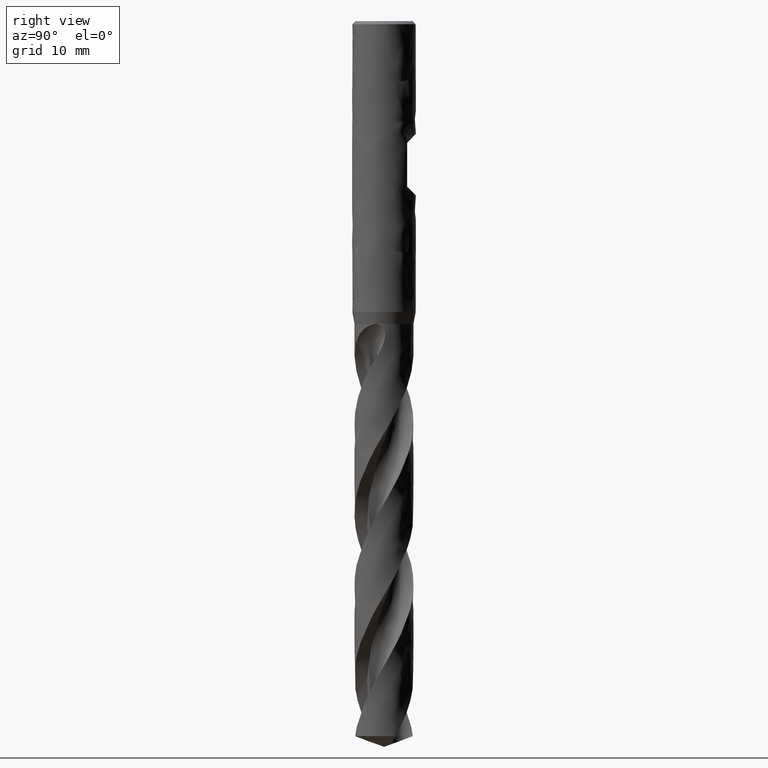
[diagram: clean part render]
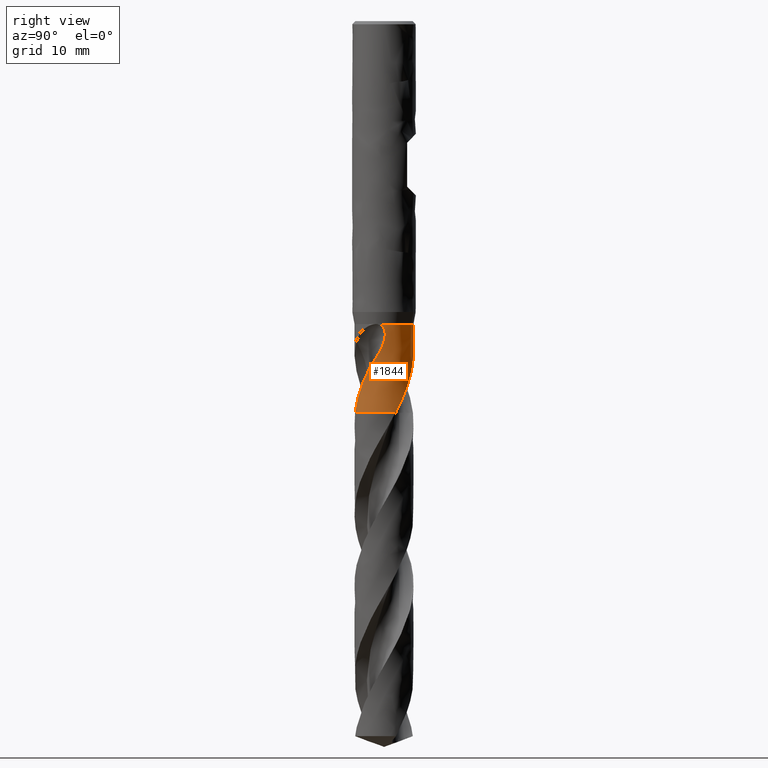
[diagram: same view with one face highlighted and labeled with its STEP entity id]
A machine part, right view. The second image highlights one B-rep face of the part: STEP entity #1844.
In plain terms, the highlighted face is a freeform B-spline surface patch.
Its self-contained STEP definition (entity closure, byte-faithful):
#75 = VERTEX_POINT('', #76);
#76 = CARTESIAN_POINT('', (3.61565032876505, -0.785539750809081, -38.));
#86 = EDGE_CURVE('', #87, #75, #89, .T.);
#87 = VERTEX_POINT('', #88);
#88 = CARTESIAN_POINT('', (-3.49489260508596, 1.21479450069363, -38.));
#89 = CIRCLE('', #90, 3.7);
#90 = AXIS2_PLACEMENT_3D('', #91, #92, #93);
#91 = CARTESIAN_POINT('', (1.42477179352876E-31, 2.32682891837997E-15, -38.));
#92 = DIRECTION('', (3.74939945665464E-33, 6.12323399573677E-17, -1.));
#93 = DIRECTION('', (-1., 6.12323399573677E-17, 0.));
#567 = VERTEX_POINT('', #568);
#568 = CARTESIAN_POINT('', (3.41056704865029, 1.43458440206941, -49.1));
#577 = VERTEX_POINT('', #578);
#578 = CARTESIAN_POINT('', (-1.24992992825555, 3.48248118077487, -40.1837766719755));
#598 = EDGE_CURVE('', #577, #567, #599, .T.);
#599 = B_SPLINE_CURVE_WITH_KNOTS('', 3, (#600, #601, #602, #603, #604, #605, #606, #607, #608, #609, #610, #611, #612, #613, #614, #615, #616, #617, #618, #619, #620, #621, #622, #623, #624, #625, #626, #627, #628, #629, #630, #631, #632, #633, #634, #635, #636, #637, #638, #639, #640, #641, #642, #643, #644, #645, #646, #647, #648, #649, #650, #651, #652, #653, #654, #655, #656, #657, #658, #659, #660, #661, #662, #663, #664, #665, #666, #667, #668, #669, #670, #671, #672, #673, #674, #675, #676, #677, #678, #679, #680, #681, #682, #683, #684, #685, #686, #687, #688, #689, #690, #691, #692, #693, #694, #695, #696, #697, #698, #699, #700, #701, #702, #703, #704, #705, #706, #707, #708, #709, #710, #711), .UNSPECIFIED., .F., .U., (4, 3, 3, 3, 3, 3, 3, 3, 3, 3, 3, 3, 3, 3, 3, 3, 3, 3, 3, 3, 3, 3, 3, 3, 3, 3, 3, 3, 3, 3, 3, 3, 3, 3, 3, 3, 3, 4), (0., 0.29427714454327, 0.588592112093783, 0.882947436501731, 1.17735605179881, 1.47182101824767, 1.7663437399214, 2.06093205689115, 2.14851104465765, 2.44417440284584, 2.7398686068457, 3.03560211182068, 3.2327288939606, 3.67662153809367, 3.97240634839001, 4.26821356890941, 4.56409605924149, 4.76127917067626, 4.84887873226689, 5.046016310154, 5.24310145588374, 5.44017411937876, 5.57156112206824, 5.70296025341936, 5.99864274804459, 6.29426701755207, 6.49133080325853, 6.93471127537161, 7.23030054133027, 7.67362812909391, 7.96917282006782, 8.26471765246939, 8.56026674186628, 8.75729750790199, 9.20050050843911, 9.49599203726311, 10.1604980002279, 10.555448820021), .UNSPECIFIED.);
#600 = CARTESIAN_POINT('', (-1.24992992825555, 3.48248118077487, -40.1837766719755));
#601 = CARTESIAN_POINT('', (-1.19038797063701, 3.50385194229547, -40.2587444060092));
#602 = CARTESIAN_POINT('', (-1.13063316269059, 3.52357466607147, -40.3340311483361));
#603 = CARTESIAN_POINT('', (-1.07078065570963, 3.54167033860551, -40.4096111678837));
#604 = CARTESIAN_POINT('', (-1.01092045597425, 3.55976833694965, -40.4852009016196));
#605 = CARTESIAN_POINT('', (-0.950945331803026, 3.57624400774011, -40.5611054420589));
#606 = CARTESIAN_POINT('', (-0.89097181609877, 3.59112367134824, -40.6373049297716));
#607 = CARTESIAN_POINT('', (-0.830990076746756, 3.60600537527551, -40.7135148660588));
#608 = CARTESIAN_POINT('', (-0.770996188597096, 3.61929421203705, -40.7900428013485));
#609 = CARTESIAN_POINT('', (-0.711095418243491, 3.63102510403786, -40.866864103344));
#610 = CARTESIAN_POINT('', (-0.651183803291378, 3.64275811983129, -40.9436993132771));
#611 = CARTESIAN_POINT('', (-0.591348623737727, 3.65293592424542, -41.0208472736099));
#612 = CARTESIAN_POINT('', (-0.531691110517853, 3.66159863488563, -41.0982853347428));
#613 = CARTESIAN_POINT('', (-0.47202217857785, 3.67026300360817, -41.1757382178738));
#614 = CARTESIAN_POINT('', (-0.412515872017726, 3.67741382674891, -41.2535006025084));
#615 = CARTESIAN_POINT('', (-0.353274758725985, 3.6830961085542, -41.331555736862));
#616 = CARTESIAN_POINT('', (-0.29402202611035, 3.68877950486038, -41.4096261806492));
#617 = CARTESIAN_POINT('', (-0.235022853736817, 3.69299506630933, -41.4880100515751));
#618 = CARTESIAN_POINT('', (-0.176367363137274, 3.69579417084069, -41.56668584166));
#619 = CARTESIAN_POINT('', (-0.117698808947096, 3.69859389878096, -41.6453791542018));
#620 = CARTESIAN_POINT('', (-0.0593599264275786, 3.69997721050514, -41.7243820257142));
#621 = CARTESIAN_POINT('', (-0.00143792183375827, 3.69999972059199, -41.8036758845133));
#622 = CARTESIAN_POINT('', (0.0157818735196821, 3.70000641267891, -41.8272493784018));
#623 = CARTESIAN_POINT('', (0.0329655604907672, 3.69989287495639, -41.8508496273884));
#624 = CARTESIAN_POINT('', (0.0501108339437064, 3.69966064718394, -41.8744762369504));
#625 = CARTESIAN_POINT('', (0.107992630199059, 3.69887665498651, -41.9542387793577));
#626 = CARTESIAN_POINT('', (0.165444101978918, 3.69673929272208, -42.0343129562418));
#627 = CARTESIAN_POINT('', (0.22237737912706, 3.69331129222183, -42.1146860295844));
#628 = CARTESIAN_POINT('', (0.279316595980264, 3.68988293408694, -42.1950674880468));
#629 = CARTESIAN_POINT('', (0.33575194307453, 3.685163040805, -42.2757626868627));
#630 = CARTESIAN_POINT('', (0.391614716754155, 3.6792170245342, -42.3567503546105));
#631 = CARTESIAN_POINT('', (0.447484915203857, 3.67327021797319, -42.4377487865));
#632 = CARTESIAN_POINT('', (0.502793651737888, 3.66609569116279, -42.5190556169342));
#633 = CARTESIAN_POINT('', (0.557471156749236, 3.657762418391, -42.6006553507713));
#634 = CARTESIAN_POINT('', (0.59391748574817, 3.65220771722065, -42.6550472025033));
#635 = CARTESIAN_POINT('', (0.630087132330359, 3.6461376877616, -42.7095750414887));
#636 = CARTESIAN_POINT('', (0.665958447456405, 3.63957406110406, -42.7642360942928));
#637 = CARTESIAN_POINT('', (0.746733939994651, 3.62479400148715, -42.887322561778));
#638 = CARTESIAN_POINT('', (0.826017335544187, 3.60750559415785, -43.0111209823936));
#639 = CARTESIAN_POINT('', (0.90360256458355, 3.58796633279607, -43.1355884815064));
#640 = CARTESIAN_POINT('', (0.955300948317809, 3.57494648037992, -43.2185265434449));
#641 = CARTESIAN_POINT('', (1.00625738256647, 3.56092484722939, -43.3017792863761));
#642 = CARTESIAN_POINT('', (1.0564205675421, 3.54598020080138, -43.3853333046638));
#643 = CARTESIAN_POINT('', (1.10658755314619, 3.53103442208785, -43.4688936534463));
#644 = CARTESIAN_POINT('', (1.15596813624443, 3.51516376440346, -43.5527694792319));
#645 = CARTESIAN_POINT('', (1.20453739460489, 3.49844103351764, -43.6369348643295));
#646 = CARTESIAN_POINT('', (1.25311901168658, 3.4817140474388, -43.7211216657833));
#647 = CARTESIAN_POINT('', (1.30089764401582, 3.46413101133533, -43.8056101657545));
#648 = CARTESIAN_POINT('', (1.34781794765524, 3.44577810951031, -43.8903983678911));
#649 = CARTESIAN_POINT('', (1.37908675119513, 3.43354730030747, -43.9469032374137));
#650 = CARTESIAN_POINT('', (1.40997621643015, 3.42097388481702, -44.003546359704));
#651 = CARTESIAN_POINT('', (1.44045981423431, 3.4080897176536, -44.0603343826469));
#652 = CARTESIAN_POINT('', (1.45400230164065, 3.40236586338047, -44.0855627395645));
#653 = CARTESIAN_POINT('', (1.46746460453288, 3.39658075274915, -44.1108204601629));
#654 = CARTESIAN_POINT('', (1.48084475680079, 3.39073720689994, -44.1361079266799));
#655 = CARTESIAN_POINT('', (1.51095598980196, 3.37758665621148, -44.1930158587465));
#656 = CARTESIAN_POINT('', (1.54065109604857, 3.36414043583272, -44.2500779019095));
#657 = CARTESIAN_POINT('', (1.56994666106527, 3.35041303146494, -44.3072746177945));
#658 = CARTESIAN_POINT('', (1.59923443441845, 3.3366892781384, -44.3644561212211));
#659 = CARTESIAN_POINT('', (1.62812462269513, 3.322684089937, -44.421775544043));
#660 = CARTESIAN_POINT('', (1.65667265354085, 3.30838868922773, -44.4791906192486));
#661 = CARTESIAN_POINT('', (1.68521887631919, 3.29409419390656, -44.5366020581151));
#662 = CARTESIAN_POINT('', (1.71342466777334, 3.27950909528612, -44.5941118542932));
#663 = CARTESIAN_POINT('', (1.74138190348607, 3.26459630983852, -44.6516557031879));
#664 = CARTESIAN_POINT('', (1.76002080214728, 3.2546540573365, -44.690019795373));
#665 = CARTESIAN_POINT('', (1.77855041859426, 3.24456532426572, -44.7283994393672));
#666 = CARTESIAN_POINT('', (1.79700560536632, 3.23431149617381, -44.7667703344306));
#667 = CARTESIAN_POINT('', (1.81546249578266, 3.22405672152547, -44.8051447716071));
#668 = CARTESIAN_POINT('', (1.83385045164655, 3.21363347539465, -44.8435077798287));
#669 = CARTESIAN_POINT('', (1.85216527615607, 3.20304289540458, -44.881859069953));
#670 = CARTESIAN_POINT('', (1.89337843292441, 3.17921131388045, -44.9681595273414));
#671 = CARTESIAN_POINT('', (1.93421771718887, 3.1545340237699, -45.0544099950029));
#672 = CARTESIAN_POINT('', (1.97462591975115, 3.1290337928899, -45.1406141300833));
#673 = CARTESIAN_POINT('', (2.01502616522299, 3.10353858345679, -45.2268012900434));
#674 = CARTESIAN_POINT('', (2.05499935617434, 3.07721878344834, -45.3129497971741));
#675 = CARTESIAN_POINT('', (2.09451468737629, 3.05008331433176, -45.399046353412));
#676 = CARTESIAN_POINT('', (2.12085569372559, 3.03199475117035, -45.4564385064202));
#677 = CARTESIAN_POINT('', (2.14699626456914, 3.01354168702692, -45.5138093014936));
#678 = CARTESIAN_POINT('', (2.1729276857116, 2.99472624335982, -45.5711542614884));
#679 = CARTESIAN_POINT('', (2.23127166660841, 2.95239274070114, -45.7001766252101));
#680 = CARTESIAN_POINT('', (2.28856429776366, 2.90821823402359, -45.8290882102714));
#681 = CARTESIAN_POINT('', (2.34466827520747, 2.86225971554569, -45.9578634959006));
#682 = CARTESIAN_POINT('', (2.38207121591647, 2.8316204664225, -46.043714349844));
#683 = CARTESIAN_POINT('', (2.41894971779827, 2.8001853486307, -46.1295150224384));
#684 = CARTESIAN_POINT('', (2.45525945222342, 2.76797778572509, -46.215261093841));
#685 = CARTESIAN_POINT('', (2.50971713668241, 2.71967257706204, -46.3438638659067));
#686 = CARTESIAN_POINT('', (2.56290413755564, 2.66962101631373, -46.47236722441));
#687 = CARTESIAN_POINT('', (2.61467582066246, 2.617913358544, -46.6007561511905));
#688 = CARTESIAN_POINT('', (2.64918945461471, 2.58344240713393, -46.6863467319193));
#689 = CARTESIAN_POINT('', (2.68307842869501, 2.5482316256146, -46.7718967842485));
#690 = CARTESIAN_POINT('', (2.71630290702298, 2.51230939919799, -46.8574006591216));
#691 = CARTESIAN_POINT('', (2.74952740124993, 2.47638715559143, -46.942904574911));
#692 = CARTESIAN_POINT('', (2.78209252390733, 2.43974767789853, -47.0283689727549));
#693 = CARTESIAN_POINT('', (2.81395182732378, 2.40243108402742, -47.1137952615972));
#694 = CARTESIAN_POINT('', (2.84581158963815, 2.36511395265218, -47.1992227809104));
#695 = CARTESIAN_POINT('', (2.87696828708401, 2.32711583959978, -47.2846206357418));
#696 = CARTESIAN_POINT('', (2.90736156164572, 2.28850360494909, -47.3700069227059));
#697 = CARTESIAN_POINT('', (2.92762354310351, 2.26276237127755, -47.4269305476909));
#698 = CARTESIAN_POINT('', (2.94754658387535, 2.23674801357468, -47.4838529716583));
#699 = CARTESIAN_POINT('', (2.96711216413728, 2.21048533255225, -47.5407820304902));
#700 = CARTESIAN_POINT('', (3.01112317852762, 2.15140979188679, -47.668838831972));
#701 = CARTESIAN_POINT('', (3.05333989132625, 2.09105960469823, -47.7969430863177));
#702 = CARTESIAN_POINT('', (3.09370294206055, 2.02953248465895, -47.9250472272869));
#703 = CARTESIAN_POINT('', (3.12061372460269, 1.98851123087115, -48.0104565959459));
#704 = CARTESIAN_POINT('', (3.14670431666709, 1.94696135384495, -48.0958760682868));
#705 = CARTESIAN_POINT('', (3.17196068932058, 1.90490561062876, -48.1812875653876));
#706 = CARTESIAN_POINT('', (3.22875761442329, 1.81032999874812, -48.3733622734347));
#707 = CARTESIAN_POINT('', (3.28135427559537, 1.71315275517452, -48.5654613551739));
#708 = CARTESIAN_POINT('', (3.32948843225468, 1.61384843758089, -48.7575157381102));
#709 = CARTESIAN_POINT('', (3.35809709145742, 1.55482666226436, -48.8716637521433));
#710 = CARTESIAN_POINT('', (3.38514076358881, 1.49503260565728, -48.9858452227826));
#711 = CARTESIAN_POINT('', (3.41056704865029, 1.43458440206941, -49.1));
#974 = EDGE_CURVE('', #577, #87, #975, .T.);
#975 = B_SPLINE_CURVE_WITH_KNOTS('', 3, (#976, #977, #978, #979, #980, #981, #982, #983, #984, #985, #986, #987, #988, #989, #990, #991, #992, #993, #994, #995, #996, #997, #998, #999, #1000, #1001, #1002, #1003, #1004, #1005, #1006, #1007, #1008, #1009, #1010, #1011, #1012, #1013, #1014, #1015, #1016, #1017, #1018, #1019, #1020, #1021, #1022, #1023, #1024), .UNSPECIFIED., .F., .U., (4, 3, 3, 3, 3, 3, 3, 3, 3, 3, 3, 3, 3, 3, 3, 3, 4), (0., 0.298448926463184, 0.597056203879035, 0.895795417480713, 1.19464400283679, 1.49357151838296, 1.79254436967524, 2.09153530566243, 2.39051032726756, 2.68942480457233, 2.88787901920324, 3.0862717705071, 3.28457882336695, 3.48276793221613, 3.68079575171105, 3.87860381193015, 4.03412538615486), .UNSPECIFIED.);
#976 = CARTESIAN_POINT('', (-1.24992992825555, 3.48248118077487, -40.1837766719755));
#977 = CARTESIAN_POINT('', (-1.31031597474362, 3.4608074594146, -40.1077461675458));
#978 = CARTESIAN_POINT('', (-1.37140893899496, 3.43710595202568, -40.0328136939244));
#979 = CARTESIAN_POINT('', (-1.43297886838977, 3.41124193846625, -39.9590772781666));
#980 = CARTESIAN_POINT('', (-1.49458146554148, 3.38536420198532, -39.8853017393608));
#981 = CARTESIAN_POINT('', (-1.55669874993096, 3.35730568698522, -39.8126742855172));
#982 = CARTESIAN_POINT('', (-1.61907634901225, 3.3269493197326, -39.7412957632056));
#983 = CARTESIAN_POINT('', (-1.68148150891716, 3.29657953986878, -39.6698857031163));
#984 = CARTESIAN_POINT('', (-1.74419082206987, 3.26388854236522, -39.5996755438313));
#985 = CARTESIAN_POINT('', (-1.80693636700868, 3.22877391057062, -39.5307837198029));
#986 = CARTESIAN_POINT('', (-1.86970488379055, 3.1936464229181, -39.4618666737101));
#987 = CARTESIAN_POINT('', (-1.93255804165733, 3.15606631461197, -39.394215663681));
#988 = CARTESIAN_POINT('', (-1.99521274747664, 3.11594706185884, -39.3279720245361));
#989 = CARTESIAN_POINT('', (-2.05788400130079, 3.07581721303667, -39.2617108894977));
#990 = CARTESIAN_POINT('', (-2.12040913396078, 3.03311288613272, -39.1967998635247));
#991 = CARTESIAN_POINT('', (-2.18248041938375, 2.98777161426481, -39.133396760838));
#992 = CARTESIAN_POINT('', (-2.24456111862073, 2.94242346587908, -39.0699840423522));
#993 = CARTESIAN_POINT('', (-2.30624715631205, 2.89439411719504, -39.0080187602022));
#994 = CARTESIAN_POINT('', (-2.36721634208153, 2.84363970815259, -38.9476997002386));
#995 = CARTESIAN_POINT('', (-2.42818921584181, 2.79288222900528, -38.8873769916099));
#996 = CARTESIAN_POINT('', (-2.48851093492487, 2.73934435636954, -38.8286350204555));
#997 = CARTESIAN_POINT('', (-2.54784009116676, 2.68300407562929, -38.7717257401401));
#998 = CARTESIAN_POINT('', (-2.60716608949734, 2.62666679371156, -38.7148194889334));
#999 = CARTESIAN_POINT('', (-2.66557299097689, 2.56745729252837, -38.6596743730076));
#1000 = CARTESIAN_POINT('', (-2.72269451505491, 2.50538112423837, -38.606613411316));
#1001 = CARTESIAN_POINT('', (-2.77980447166922, 2.44331752675834, -38.553563194799));
#1002 = CARTESIAN_POINT('', (-2.83571198459132, 2.37829802815393, -38.5025181181393));
#1003 = CARTESIAN_POINT('', (-2.89001875659672, 2.31036611525515, -38.4538992691873));
#1004 = CARTESIAN_POINT('', (-2.92607391151811, 2.2652650062548, -38.4216204194908));
#1005 = CARTESIAN_POINT('', (-2.96145646996524, 2.21883959390556, -38.3903826645913));
#1006 = CARTESIAN_POINT('', (-2.99603998481029, 2.17111593642946, -38.3603420023938));
#1007 = CARTESIAN_POINT('', (-3.03061278878237, 2.1234070594647, -38.3303106441007));
#1008 = CARTESIAN_POINT('', (-3.06441687646265, 2.07435923117886, -38.3014492562182));
#1009 = CARTESIAN_POINT('', (-3.09731618680947, 2.02401394237492, -38.2739486113056));
#1010 = CARTESIAN_POINT('', (-3.13020128585226, 1.9736904009024, -38.2464598456702));
#1011 = CARTESIAN_POINT('', (-3.16221531238784, 1.92201955631254, -38.2203024839329));
#1012 = CARTESIAN_POINT('', (-3.19321069495888, 1.86906539682277, -38.1957125662112));
#1013 = CARTESIAN_POINT('', (-3.22418764288687, 1.81614273205727, -38.1711372734536));
#1014 = CARTESIAN_POINT('', (-3.25418382686119, 1.76187460924203, -38.1480976023825));
#1015 = CARTESIAN_POINT('', (-3.28303794943366, 1.70635923022628, -38.1268889469266));
#1016 = CARTESIAN_POINT('', (-3.31186859007605, 1.65088903048241, -38.1056975514017));
#1017 = CARTESIAN_POINT('', (-3.33960029550135, 1.59409233930853, -38.0863027510183));
#1018 = CARTESIAN_POINT('', (-3.36605571409175, 1.53612139156717, -38.069077647566));
#1019 = CARTESIAN_POINT('', (-3.39248177406151, 1.47821477647123, -38.0518716594898));
#1020 = CARTESIAN_POINT('', (-3.4176813170726, 1.41903014411121, -38.0367987820141));
#1021 = CARTESIAN_POINT('', (-3.44145923897237, 1.35880767825755, -38.0243318746307));
#1022 = CARTESIAN_POINT('', (-3.46015402745344, 1.31145929072026, -38.014530084654));
#1023 = CARTESIAN_POINT('', (-3.4779993440003, 1.26339542308042, -38.0063251939517));
#1024 = CARTESIAN_POINT('', (-3.49489260508597, 1.21479450069363, -38.));
#1174 = EDGE_CURVE('', #1175, #1177, #1179, .T.);
#1175 = VERTEX_POINT('', #1176);
#1176 = CARTESIAN_POINT('', (3.22279870937257, -1.81757213855915, -43.5197669627323));
#1177 = VERTEX_POINT('', #1178);
#1178 = CARTESIAN_POINT('', (2.63015329540276, -2.60236308817234, -45.2458569978374));
#1179 = B_SPLINE_CURVE_WITH_KNOTS('', 3, (#1180, #1181, #1182, #1183, #1184, #1185, #1186, #1187, #1188, #1189, #1190, #1191, #1192, #1193, #1194, #1195, #1196, #1197, #1198, #1199, #1200, #1201, #1202, #1203, #1204, #1205, #1206, #1207), .UNSPECIFIED., .F., .U., (4, 3, 3, 3, 3, 3, 3, 3, 3, 4), (0., 0.295750939950184, 0.591578091872068, 0.679171715455199, 0.87629684888586, 1.07335978973788, 1.27039931977393, 1.46745721586414, 1.76309246680476, 1.98882235642753), .UNSPECIFIED.);
#1180 = CARTESIAN_POINT('', (3.22279870937257, -1.81757213855915, -43.5197669627323));
#1181 = CARTESIAN_POINT('', (3.19626796998906, -1.86461469100038, -43.6022403130608));
#1182 = CARTESIAN_POINT('', (3.16910186541744, -1.91037439369307, -43.6852549955602));
#1183 = CARTESIAN_POINT('', (3.14146218242953, -1.95479291904924, -43.7688120294731));
#1184 = CARTESIAN_POINT('', (3.11381537697994, -1.999222890602, -43.8523905951733));
#1185 = CARTESIAN_POINT('', (3.08568681225226, -2.04232241891967, -43.9365316459488));
#1186 = CARTESIAN_POINT('', (3.05727811094474, -2.08399869297899, -44.0212652209873));
#1187 = CARTESIAN_POINT('', (3.04886637093829, -2.09633892557287, -44.0463546045295));
#1188 = CARTESIAN_POINT('', (3.04043001035971, -2.10855470886784, -44.0714973343541));
#1189 = CARTESIAN_POINT('', (3.03197520852461, -2.12064290602923, -44.0966947090637));
#1190 = CARTESIAN_POINT('', (3.01294809363091, -2.14784679805813, -44.1534001591699));
#1191 = CARTESIAN_POINT('', (2.99383113884918, -2.17440057766066, -44.2103909841058));
#1192 = CARTESIAN_POINT('', (2.97462745511065, -2.20036167556661, -44.2676171218476));
#1193 = CARTESIAN_POINT('', (2.95542983009528, -2.22631458279897, -44.3248252048593));
#1194 = CARTESIAN_POINT('', (2.93614411318043, -2.2516778114088, -44.3822737120716));
#1195 = CARTESIAN_POINT('', (2.91673372084798, -2.2765465955408, -44.4398900917497));
#1196 = CARTESIAN_POINT('', (2.8973256344444, -2.30141242529422, -44.4974996266783));
#1197 = CARTESIAN_POINT('', (2.87779179262632, -2.32578601526607, -44.5552807354023));
#1198 = CARTESIAN_POINT('', (2.85805121299634, -2.34979643030841, -44.6131396267436));
#1199 = CARTESIAN_POINT('', (2.83830879334698, -2.37380908336148, -44.6710039111119));
#1200 = CARTESIAN_POINT('', (2.81835851790078, -2.39746038109705, -44.7289484255521));
#1201 = CARTESIAN_POINT('', (2.79807511762884, -2.42090388824223, -44.7868589746072));
#1202 = CARTESIAN_POINT('', (2.76764503465171, -2.456074907802, -44.873739023779));
#1203 = CARTESIAN_POINT('', (2.73646270551418, -2.49077480024029, -44.9605509603328));
#1204 = CARTESIAN_POINT('', (2.70454721975329, -2.52496026426649, -45.0472913161595));
#1205 = CARTESIAN_POINT('', (2.68017841036693, -2.55106229708154, -45.1135212088542));
#1206 = CARTESIAN_POINT('', (2.65538046316783, -2.57686652363354, -45.179712694397));
#1207 = CARTESIAN_POINT('', (2.63015329540276, -2.60236308817234, -45.2458569978374));
#1237 = VERTEX_POINT('', #1238);
#1238 = CARTESIAN_POINT('', (0.727143582491771, -3.62784539505765, -49.1));
#1314 = EDGE_CURVE('', #1177, #1237, #1315, .T.);
#1315 = B_SPLINE_CURVE_WITH_KNOTS('', 3, (#1316, #1317, #1318, #1319, #1320, #1321, #1322, #1323, #1324, #1325, #1326, #1327, #1328, #1329, #1330, #1331, #1332, #1333, #1334, #1335, #1336, #1337, #1338, #1339, #1340, #1341, #1342, #1343, #1344, #1345, #1346, #1347, #1348, #1349, #1350, #1351, #1352, #1353, #1354, #1355), .UNSPECIFIED., .F., .U., (4, 3, 3, 3, 3, 3, 3, 3, 3, 3, 3, 3, 3, 4), (0., 0.295560042018923, 0.738819006292096, 1.03434807998932, 1.47753799284324, 1.77301750903576, 2.06848564616201, 2.36396350563424, 2.56096532839385, 2.75795680938547, 3.20097984470927, 3.49639353476291, 4.16048844135131, 4.43471449933253), .UNSPECIFIED.);
#1316 = CARTESIAN_POINT('', (2.63015329540277, -2.60236308817233, -45.2458569978374));
#1317 = CARTESIAN_POINT('', (2.59712203500068, -2.63574708396934, -45.332463220597));
#1318 = CARTESIAN_POINT('', (2.56332988578325, -2.6686291139198, -45.4189778126348));
#1319 = CARTESIAN_POINT('', (2.52876896547978, -2.70098639745305, -45.5053765519192));
#1320 = CARTESIAN_POINT('', (2.47693706819962, -2.74951344423404, -45.6349509538854));
#1321 = CARTESIAN_POINT('', (2.42337331099367, -2.79685939092431, -45.7642925394977));
#1322 = CARTESIAN_POINT('', (2.36817789169331, -2.84283898124657, -45.8934060107232));
#1323 = CARTESIAN_POINT('', (2.33137806934811, -2.87349443738426, -45.9794883861032));
#1324 = CARTESIAN_POINT('', (2.29384914970067, -2.90354632156435, -46.065479355284));
#1325 = CARTESIAN_POINT('', (2.25562581766955, -2.93294257882125, -46.1513804391796));
#1326 = CARTESIAN_POINT('', (2.19830423174255, -2.97702664990411, -46.2802019233383));
#1327 = CARTESIAN_POINT('', (2.13941121461517, -3.01964277342053, -46.4088450424025));
#1328 = CARTESIAN_POINT('', (2.07906064827211, -3.06063830283947, -46.5373025062846));
#1329 = CARTESIAN_POINT('', (2.03882427188403, -3.08797046642768, -46.6229464890972));
#1330 = CARTESIAN_POINT('', (1.99793522395257, -3.11458609072129, -46.7085181288292));
#1331 = CARTESIAN_POINT('', (1.9564263808907, -3.14044516209963, -46.7940121597225));
#1332 = CARTESIAN_POINT('', (1.91491913635547, -3.16630323763199, -46.8795028981972));
#1333 = CARTESIAN_POINT('', (1.87278411679125, -3.19140939041612, -46.9649219472094));
#1334 = CARTESIAN_POINT('', (1.83008035141639, -3.21571234835451, -47.050279503655));
#1335 = CARTESIAN_POINT('', (1.78737518087891, -3.24001610597901, -47.1356398687813));
#1336 = CARTESIAN_POINT('', (1.74409699491558, -3.26351856373036, -47.220947376712));
#1337 = CARTESIAN_POINT('', (1.70033585872314, -3.28616158573194, -47.3062295710646));
#1338 = CARTESIAN_POINT('', (1.67115931192081, -3.30125820452789, -47.3630891535944));
#1339 = CARTESIAN_POINT('', (1.64176710584522, -3.3159735076751, -47.4199409988578));
#1340 = CARTESIAN_POINT('', (1.61219390275163, -3.33028990028353, -47.4767974626004));
#1341 = CARTESIAN_POINT('', (1.58262225212694, -3.34460554134149, -47.5336509416175));
#1342 = CARTESIAN_POINT('', (1.55287224159846, -3.35852130761173, -47.5905140172518));
#1343 = CARTESIAN_POINT('', (1.52295556687703, -3.37203296859895, -47.6473837435295));
#1344 = CARTESIAN_POINT('', (1.45567460642554, -3.40241995301417, -47.7752806384954));
#1345 = CARTESIAN_POINT('', (1.38753839577412, -3.43076897885617, -47.9032308095597));
#1346 = CARTESIAN_POINT('', (1.31863397039514, -3.45705141010658, -48.0311726954838));
#1347 = CARTESIAN_POINT('', (1.27268757722994, -3.47457688706873, -48.1164860575884));
#1348 = CARTESIAN_POINT('', (1.2263906206759, -3.49118681717829, -48.2018043334084));
#1349 = CARTESIAN_POINT('', (1.17977117923706, -3.50687039461706, -48.2871110519005));
#1350 = CARTESIAN_POINT('', (1.07496989666308, -3.54212733850573, -48.4788819790977));
#1351 = CARTESIAN_POINT('', (0.968515615092697, -3.57270341977046, -48.6706741539092));
#1352 = CARTESIAN_POINT('', (0.860952078002489, -3.59843876137724, -48.8624297982085));
#1353 = CARTESIAN_POINT('', (0.816535648263107, -3.6090657082332, -48.9416118456993));
#1354 = CARTESIAN_POINT('', (0.77191621648385, -3.6188714367068, -49.0208139709795));
#1355 = CARTESIAN_POINT('', (0.727143582491771, -3.62784539505765, -49.1));
#1358 = EDGE_CURVE('', #1175, #75, #1359, .T.);
#1359 = B_SPLINE_CURVE_WITH_KNOTS('', 3, (#1360, #1361, #1362, #1363, #1364, #1365, #1366, #1367, #1368, #1369, #1370, #1371, #1372, #1373, #1374, #1375, #1376, #1377, #1378, #1379, #1380, #1381, #1382, #1383, #1384, #1385, #1386, #1387, #1388, #1389, #1390, #1391, #1392, #1393, #1394, #1395, #1396, #1397, #1398, #1399, #1400, #1401, #1402, #1403, #1404, #1405, #1406, #1407, #1408, #1409, #1410, #1411, #1412, #1413, #1414, #1415, #1416, #1417, #1418, #1419, #1420, #1421, #1422, #1423, #1424, #1425, #1426, #1427, #1428, #1429, #1430, #1431, #1432, #1433, #1434, #1435, #1436, #1437, #1438, #1439, #1440, #1441, #1442, #1443, #1444, #1445, #1446, #1447, #1448, #1449, #1450, #1451, #1452, #1453, #1454, #1455, #1456, #1457, #1458, #1459, #1460, #1461, #1462, #1463, #1464, #1465, #1466, #1467, #1468), .UNSPECIFIED., .F., .U., (4, 3, 3, 3, 3, 3, 3, 3, 3, 3, 3, 3, 3, 3, 3, 3, 3, 3, 3, 3, 3, 3, 3, 3, 3, 3, 3, 3, 3, 3, 3, 3, 3, 3, 3, 3, 4), (0., 0.13133045936398, 0.426721623150737, 0.721959448666224, 1.01701635195514, 1.31188000124053, 1.60655670970567, 1.90105275446094, 2.19536432592904, 2.48950990678108, 2.78351498566091, 3.07740949592864, 3.37124822652874, 3.66509118925585, 3.79612683179342, 3.88356872351753, 4.17777693603379, 4.37431814964015, 4.57100770885269, 4.76792201776873, 4.96516243394355, 5.09677074379244, 5.13572499198515, 5.26761467444974, 5.39973894164116, 5.53212311433371, 5.62026745276122, 5.70850087896705, 5.79680949077456, 5.88517633835534, 5.97357711468378, 6.06198253552852, 6.15036229658073, 6.23868938532495, 6.37165443077655, 6.45977666943238, 6.53789027809907), .UNSPECIFIED.);
#1360 = CARTESIAN_POINT('', (3.22279870937257, -1.81757213855915, -43.5197669627323));
#1361 = CARTESIAN_POINT('', (3.23457988643693, -1.79668253454706, -43.483144042833));
#1362 = CARTESIAN_POINT('', (3.24621655590029, -1.77557422090455, -43.4465984223532));
#1363 = CARTESIAN_POINT('', (3.25769139588161, -1.75426530752878, -43.41012009716));
#1364 = CARTESIAN_POINT('', (3.28350084140371, -1.70633686235632, -43.328072299688));
#1365 = CARTESIAN_POINT('', (3.30849342013193, -1.65738439684978, -43.2463557461228));
#1366 = CARTESIAN_POINT('', (3.33249603267909, -1.60762874824325, -43.1648489707758));
#1367 = CARTESIAN_POINT('', (3.35648618541172, -1.55789892791487, -43.083384505794));
#1368 = CARTESIAN_POINT('', (3.37949118972458, -1.50735842102949, -43.0021152721948));
#1369 = CARTESIAN_POINT('', (3.40136997043561, -1.45625627010457, -42.9209060939067));
#1370 = CARTESIAN_POINT('', (3.42323534379372, -1.40518543466205, -42.8397466807369));
#1371 = CARTESIAN_POINT('', (3.44397940470698, -1.35354489320106, -42.7586340276039));
#1372 = CARTESIAN_POINT('', (3.46349619427969, -1.3016121204914, -42.6774228388772));
#1373 = CARTESIAN_POINT('', (3.48300020090212, -1.24971336229259, -42.5962648412034));
#1374 = CARTESIAN_POINT('', (3.50128062350183, -1.19751738390901, -42.5149924778318));
#1375 = CARTESIAN_POINT('', (3.51827427911201, -1.14531484620554, -42.4334656804604));
#1376 = CARTESIAN_POINT('', (3.53525716090207, -1.09314540442707, -42.3519905703227));
#1377 = CARTESIAN_POINT('', (3.55095826169154, -1.04095991653136, -42.2702469765639));
#1378 = CARTESIAN_POINT('', (3.56535864433992, -0.98904890537917, -42.1881120972369));
#1379 = CARTESIAN_POINT('', (3.57975019823978, -0.937169720413404, -42.1060275740853));
#1380 = CARTESIAN_POINT('', (3.59284627684618, -0.885551589614816, -42.0235376150279));
#1381 = CARTESIAN_POINT('', (3.60466508425083, -0.834499628749516, -41.9405288884943));
#1382 = CARTESIAN_POINT('', (3.6164764883158, -0.783479646999742, -41.857572158899));
#1383 = CARTESIAN_POINT('', (3.62701441873306, -0.733015814505482, -41.774076270649));
#1384 = CARTESIAN_POINT('', (3.63633410947883, -0.683428302194644, -41.6899419210876));
#1385 = CARTESIAN_POINT('', (3.64564854395418, -0.633868757053688, -41.605855022982));
#1386 = CARTESIAN_POINT('', (3.65374893706537, -0.585170138607316, -41.5211072442981));
#1387 = CARTESIAN_POINT('', (3.6607261531634, -0.537665352747824, -41.4356196579878));
#1388 = CARTESIAN_POINT('', (3.66770003651505, -0.490183258087985, -41.3501729057925));
#1389 = CARTESIAN_POINT('', (3.67355429415769, -0.4438768012339, -41.2639580903101));
#1390 = CARTESIAN_POINT('', (3.67841163516972, -0.399108810036123, -41.1769146240106));
#1391 = CARTESIAN_POINT('', (3.68326714944645, -0.354357655059925, -41.0899038927758));
#1392 = CARTESIAN_POINT('', (3.68712881696965, -0.311124107420765, -41.0020279937675));
#1393 = CARTESIAN_POINT('', (3.69015040241204, -0.269796233439673, -40.9132587080081));
#1394 = CARTESIAN_POINT('', (3.69317141437305, -0.228476203276666, -40.824506270203));
#1395 = CARTESIAN_POINT('', (3.69535457789735, -0.189036624502809, -40.7348126388656));
#1396 = CARTESIAN_POINT('', (3.69687999110956, -0.151915540132481, -40.644186126012));
#1397 = CARTESIAN_POINT('', (3.69840542629214, -0.114793921111244, -40.5535583078747));
#1398 = CARTESIAN_POINT('', (3.69927437195055, -0.0799654880723994, -40.4619311562664));
#1399 = CARTESIAN_POINT('', (3.6996893232972, -0.0479469611207538, -40.3693655864317));
#1400 = CARTESIAN_POINT('', (3.6998743657288, -0.033668694208126, -40.3280871130337));
#1401 = CARTESIAN_POINT('', (3.69996948098932, -0.0199459815620363, -40.2866111234687));
#1402 = CARTESIAN_POINT('', (3.69999369418016, -0.00683103411526467, -40.244948033329));
#1403 = CARTESIAN_POINT('', (3.7000098519764, 0.00192075121886126, -40.2171456785929));
#1404 = CARTESIAN_POINT('', (3.69999445266712, 0.0104028496350793, -40.1892568031674));
#1405 = CARTESIAN_POINT('', (3.69995325630272, 0.018598418613027, -40.1612854626835));
#1406 = CARTESIAN_POINT('', (3.69981464643856, 0.0461733446812253, -40.0671726990735));
#1407 = CARTESIAN_POINT('', (3.69938380313512, 0.0705404710696561, -39.9720348512439));
#1408 = CARTESIAN_POINT('', (3.69888219893212, 0.0909421707631891, -39.8761123456599));
#1409 = CARTESIAN_POINT('', (3.69854711005759, 0.104571208454235, -39.8120328099515));
#1410 = CARTESIAN_POINT('', (3.69818040480272, 0.116440585234922, -39.7475462988309));
#1411 = CARTESIAN_POINT('', (3.69784478619809, 0.126269304217732, -39.6827749047371));
#1412 = CARTESIAN_POINT('', (3.69750891427485, 0.136105441732507, -39.6179546224151));
#1413 = CARTESIAN_POINT('', (3.69720432321083, 0.143908607176527, -39.5527822471705));
#1414 = CARTESIAN_POINT('', (3.69698512712611, 0.149335092353892, -39.4874443820143));
#1415 = CARTESIAN_POINT('', (3.69676568057434, 0.154767778170169, -39.4220318577564));
#1416 = CARTESIAN_POINT('', (3.69663238185845, 0.157826172337856, -39.3563625117353));
#1417 = CARTESIAN_POINT('', (3.69662129954316, 0.158085317989521, -39.290724921267));
#1418 = CARTESIAN_POINT('', (3.69661019887459, 0.158344892808972, -39.224978629228));
#1419 = CARTESIAN_POINT('', (3.69672318338171, 0.155795347485869, -39.1591375863314));
#1420 = CARTESIAN_POINT('', (3.69696113824582, 0.149927790286541, -39.0936535610336));
#1421 = CARTESIAN_POINT('', (3.69711991319718, 0.146012673390515, -39.0499594639582));
#1422 = CARTESIAN_POINT('', (3.69733385392006, 0.140613530671772, -39.0063665260317));
#1423 = CARTESIAN_POINT('', (3.69758857314636, 0.13356176001178, -38.9630683145478));
#1424 = CARTESIAN_POINT('', (3.69766396653127, 0.131474532960518, -38.9502526399268));
#1425 = CARTESIAN_POINT('', (3.69774285100416, 0.129241983247894, -38.9374597460681));
#1426 = CARTESIAN_POINT('', (3.69782458204331, 0.126859609160037, -38.9246956820342));
#1427 = CARTESIAN_POINT('', (3.69810130361541, 0.118793465503386, -38.8814796419234));
#1428 = CARTESIAN_POINT('', (3.69841264441417, 0.108999087865126, -38.8385413526044));
#1429 = CARTESIAN_POINT('', (3.69872033222744, 0.0973031549713363, -38.7961635771421));
#1430 = CARTESIAN_POINT('', (3.69902856730763, 0.0855864191824924, -38.7537104267248));
#1431 = CARTESIAN_POINT('', (3.6993341472976, 0.0719348132811771, -38.7117321555944));
#1432 = CARTESIAN_POINT('', (3.6995732118795, 0.05619652963992, -38.6705994901943));
#1433 = CARTESIAN_POINT('', (3.69981274673232, 0.040427286761699, -38.6293859115279));
#1434 = CARTESIAN_POINT('', (3.69998628969851, 0.022517769931215, -38.5889134760874));
#1435 = CARTESIAN_POINT('', (3.69999923556182, 0.00237841164917672, -38.5496490959855));
#1436 = CARTESIAN_POINT('', (3.7000078552067, -0.0110308228236446, -38.5235059949075));
#1437 = CARTESIAN_POINT('', (3.69994464058721, -0.0254505421022478, -38.4978535985128));
#1438 = CARTESIAN_POINT('', (3.69977416722617, -0.040879230998099, -38.4728496813155));
#1439 = CARTESIAN_POINT('', (3.69960352156713, -0.0563235137215354, -38.4478204925752));
#1440 = CARTESIAN_POINT('', (3.69932498455918, -0.0728052746202066, -38.4233997943518));
#1441 = CARTESIAN_POINT('', (3.69889813992871, -0.0902914748632873, -38.3997552202914));
#1442 = CARTESIAN_POINT('', (3.69847093157473, -0.107792575473983, -38.3760904981804));
#1443 = CARTESIAN_POINT('', (3.69789414985033, -0.126333088908066, -38.3531596442108));
#1444 = CARTESIAN_POINT('', (3.69712457035511, -0.145842076498864, -38.3311301809234));
#1445 = CARTESIAN_POINT('', (3.69635448335494, -0.165363929437163, -38.3090861901419));
#1446 = CARTESIAN_POINT('', (3.69538950024689, -0.185895515883377, -38.2879006268764));
#1447 = CARTESIAN_POINT('', (3.69418678930019, -0.207325747944356, -38.2677280726034));
#1448 = CARTESIAN_POINT('', (3.69298361656858, -0.228764208214847, -38.2475477730104));
#1449 = CARTESIAN_POINT('', (3.69153966704499, -0.25114781848753, -38.2283385799706));
#1450 = CARTESIAN_POINT('', (3.68981619722637, -0.274329055490571, -38.2102289251465));
#1451 = CARTESIAN_POINT('', (3.68809263685784, -0.297511510419941, -38.1921183188536));
#1452 = CARTESIAN_POINT('', (3.68608554293769, -0.321541642601306, -38.1750681999129));
#1453 = CARTESIAN_POINT('', (3.68376359894954, -0.34624521232012, -38.1591706165601));
#1454 = CARTESIAN_POINT('', (3.68144232890875, -0.370941611794533, -38.1432776475024));
#1455 = CARTESIAN_POINT('', (3.67880132132629, -0.396362961891374, -38.1285025467793));
#1456 = CARTESIAN_POINT('', (3.67581885421523, -0.422321857113677, -38.1148963880326));
#1457 = CARTESIAN_POINT('', (3.67283816458608, -0.448265281430561, -38.1012983382441));
#1458 = CARTESIAN_POINT('', (3.66951041841993, -0.474797111060324, -38.088839981507));
#1459 = CARTESIAN_POINT('', (3.66582409530805, -0.501730706912488, -38.0775331176452));
#1460 = CARTESIAN_POINT('', (3.66027481108406, -0.542275763333728, -38.0605120917212));
#1461 = CARTESIAN_POINT('', (3.65389129275339, -0.583865459403409, -38.0460497679151));
#1462 = CARTESIAN_POINT('', (3.64667348884791, -0.625917299436455, -38.0340515373905));
#1463 = CARTESIAN_POINT('', (3.64188990804914, -0.653787047239141, -38.0260997412613));
#1464 = CARTESIAN_POINT('', (3.63673184168764, -0.681916237991292, -38.019209858615));
#1465 = CARTESIAN_POINT('', (3.63120809357449, -0.710160391150608, -38.0133283138673));
#1466 = CARTESIAN_POINT('', (3.62631171435098, -0.735196667585044, -38.0081147753577));
#1467 = CARTESIAN_POINT('', (3.62112267663404, -0.760351851213621, -38.0036869735234));
#1468 = CARTESIAN_POINT('', (3.61565032876505, -0.78553975080908, -38.));
#1844 = ADVANCED_FACE('', (#1845), #1860, .T.);
#1845 = FACE_OUTER_BOUND('', #1846, .T.);
#1846 = EDGE_LOOP('', (#1847, #1854, #1855, #1856, #1857, #1858, #1859));
#1847 = ORIENTED_EDGE('', *, *, #1848, .F.);
#1848 = EDGE_CURVE('', #567, #1237, #1849, .T.);
#1849 = CIRCLE('', #1850, 3.7);
#1850 = AXIS2_PLACEMENT_3D('', #1851, #1852, #1853);
#1851 = CARTESIAN_POINT('', (1.84095513321743E-31, 3.00650789190675E-15, -49.1));
#1852 = DIRECTION('', (3.74939945665464E-33, 6.12323399573677E-17, -1.));
#1853 = DIRECTION('', (-1., 6.12323399573677E-17, 0.));
#1854 = ORIENTED_EDGE('', *, *, #598, .F.);
#1855 = ORIENTED_EDGE('', *, *, #974, .T.);
#1856 = ORIENTED_EDGE('', *, *, #86, .T.);
#1857 = ORIENTED_EDGE('', *, *, #1358, .F.);
#1858 = ORIENTED_EDGE('', *, *, #1174, .T.);
#1859 = ORIENTED_EDGE('', *, *, #1314, .T.);
#1860 = (
   BOUNDED_SURFACE ()
   B_SPLINE_SURFACE (2, 1, ((#1861, #1862), (#1863, #1864), (#1865, #1866), (#1867, #1868), (#1869, #1870), (#1871, #1872), (#1873, #1874), (#1875, #1876), (#1877, #1878)), .UNSPECIFIED., .T., .F., .U.)
   B_SPLINE_SURFACE_WITH_KNOTS ((3, 2, 2, 2, 3), (2, 2), (0., 5.81194640914112, 11.6238928182822, 17.4358392274234, 23.2477856365645), (0., 0.214894262756305), .UNSPECIFIED.)
   GEOMETRIC_REPRESENTATION_ITEM ()
   RATIONAL_B_SPLINE_SURFACE (((1., 1.), (0.707106781186548, 0.707106781186548), (1., 1.), (0.707106781186548, 0.707106781186548), (1., 1.), (0.707106781186548, 0.707106781186548), (1., 1.), (0.707106781186548, 0.707106781186548), (1., 1.)))
   REPRESENTATION_ITEM ('')
   SURFACE ()
);
#1861 = CARTESIAN_POINT('', (-3.7, 2.55338857622223E-15, -38.));
#1862 = CARTESIAN_POINT('', (-3.7, 3.23306754974901E-15, -49.1));
#1863 = CARTESIAN_POINT('', (-3.7, 3.7, -38.));
#1864 = CARTESIAN_POINT('', (-3.7, 3.7, -49.1));
#1865 = CARTESIAN_POINT('', (1.4791141972894E-31, 3.7, -38.));
#1866 = CARTESIAN_POINT('', (1.97215226305253E-31, 3.7, -49.1));
#1867 = CARTESIAN_POINT('', (3.7, 3.7, -38.));
#1868 = CARTESIAN_POINT('', (3.7, 3.7, -49.1));
#1869 = CARTESIAN_POINT('', (3.7, 2.55338857622223E-15, -38.));
#1870 = CARTESIAN_POINT('', (3.7, 3.23306754974901E-15, -49.1));
#1871 = CARTESIAN_POINT('', (3.7, -3.7, -38.));
#1872 = CARTESIAN_POINT('', (3.7, -3.7, -49.1));
#1873 = CARTESIAN_POINT('', (4.53119315684521E-16, -3.7, -38.));
#1874 = CARTESIAN_POINT('', (4.53119315684521E-16, -3.7, -49.1));
#1875 = CARTESIAN_POINT('', (-3.7, -3.7, -38.));
#1876 = CARTESIAN_POINT('', (-3.7, -3.7, -49.1));
#1877 = CARTESIAN_POINT('', (-3.7, 2.55338857622223E-15, -38.));
#1878 = CARTESIAN_POINT('', (-3.7, 3.23306754974901E-15, -49.1));